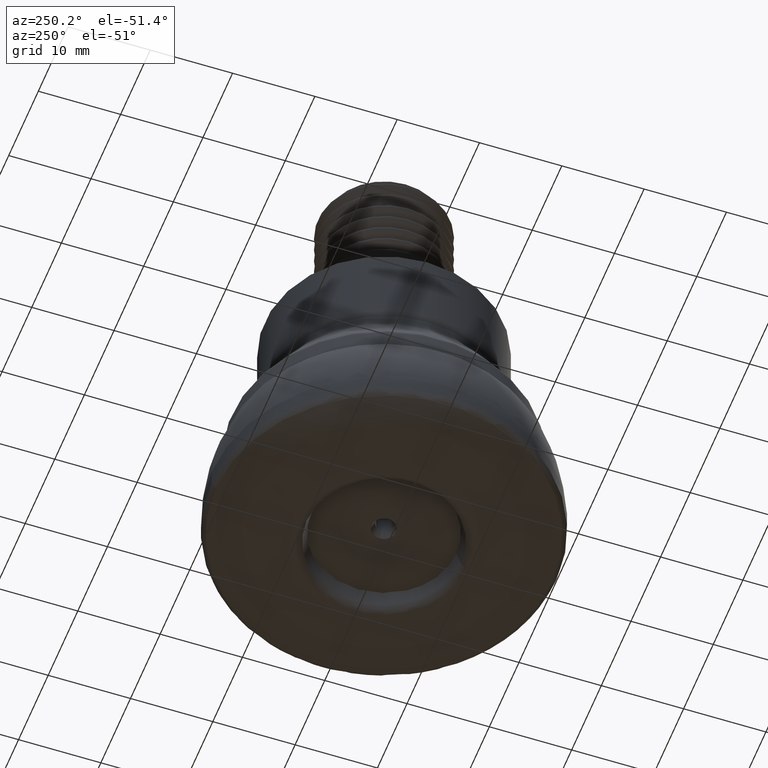
[diagram: clean part render]
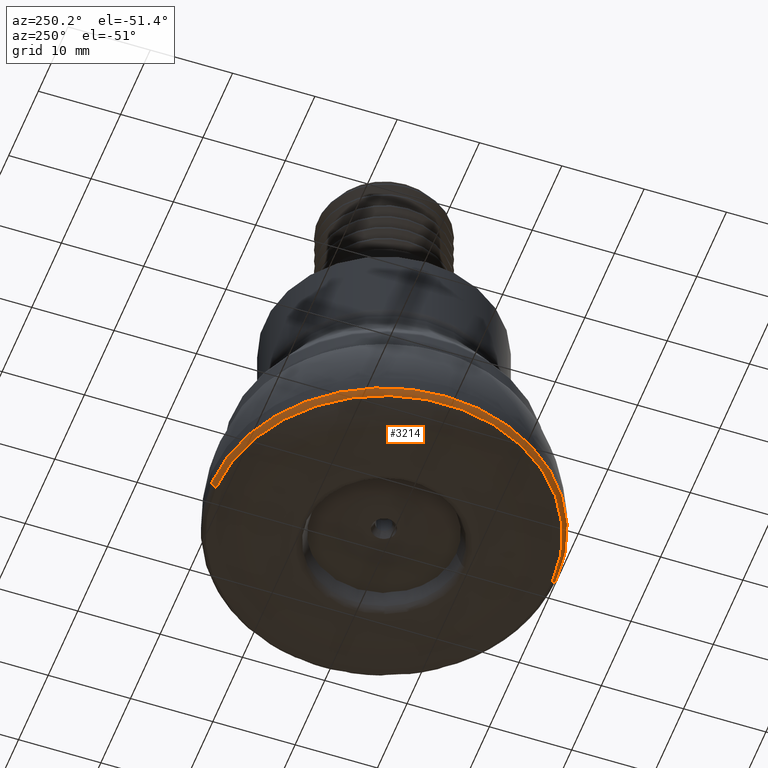
[diagram: same view with one face highlighted and labeled with its STEP entity id]
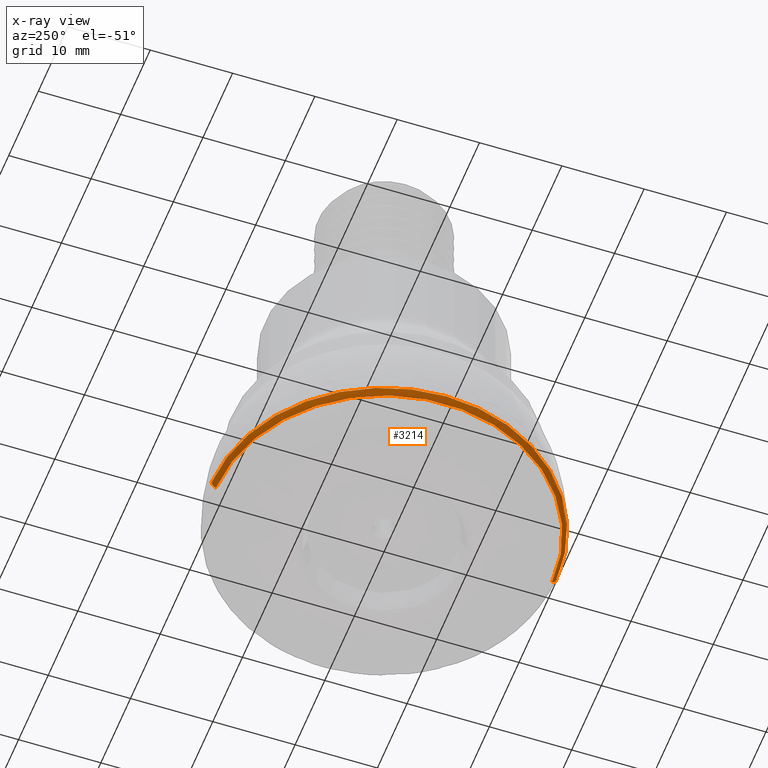
[diagram: x-ray of the same camera — body ghosted, the highlighted face saturated]
A machine part, auxiliary view. The second image highlights one B-rep face of the part: STEP entity #3214.
The next image is the same camera in x-ray: the body ghosted, the highlighted face saturated — about 0% of this face is hidden behind the body in this view.
In plain terms, the highlighted face is a freeform B-spline surface patch.
Its self-contained STEP definition (entity closure, byte-faithful):
#47 = CARTESIAN_POINT ( 'NONE',  ( 1.461077544255606300E-013, -20.92346202743445700, -2.397399454441438300 ) ) ;
#59 = EDGE_CURVE ( 'NONE', #2403, #573, #398, .T. ) ;
#74 = B_SPLINE_CURVE_WITH_KNOTS ( 'NONE', 3,
 ( #2691, #3510, #3520, #191, #180, #210, #491, #3498, #471, #2396, #2681 ),
 .UNSPECIFIED., .F., .F.,
 ( 4, 1, 1, 1, 1, 1, 1, 1, 4 ),
 ( 0.0000000000000000000, 0.1667642181257112900, 0.3334573602462579400, 0.5001451242837008400, 0.6141021189456012900, 0.7210662956580875500, 0.8210403006073694300, 0.9140207420277510800, 1.000000000000000000 ),
 .UNSPECIFIED. ) ;
#108 = CARTESIAN_POINT ( 'NONE',  ( 0.0000000000000000000, 3.197121119937112300E-016, -2.559742841672377100 ) ) ;
#180 = CARTESIAN_POINT ( 'NONE',  ( 9.226729345780421700E-015, -20.77674742175253200, -2.104751330522615800 ) ) ;
#183 = CARTESIAN_POINT ( 'NONE',  ( -9.303151783846082900E-015, 20.94883545355021300, -2.559742976856322000 ) ) ;
#191 = CARTESIAN_POINT ( 'NONE',  ( 9.185202320268800200E-015, -20.68323687344261000, -1.997532476301231000 ) ) ;
#210 = CARTESIAN_POINT ( 'NONE',  ( 9.255942468224479000E-015, -20.84252952542924900, -2.208738400985838600 ) ) ;
#355 = CARTESIAN_POINT ( 'NONE',  ( -9.203765048319548200E-015, 20.72503642100876300, -2.044700752447964600 ) ) ;
#371 = CARTESIAN_POINT ( 'NONE',  ( -9.105388207306521800E-015, 20.50351146874464400, -1.866481447531013400 ) ) ;
#398 = B_SPLINE_CURVE_WITH_KNOTS ( 'NONE', 3,
 ( #706, #3383, #371, #1256, #2109, #2336, #2935, #1830, #477, #1042, #417 ),
 .UNSPECIFIED., .F., .F.,
 ( 4, 1, 1, 1, 1, 1, 1, 1, 4 ),
 ( 0.0000000000000000000, 0.1000095332930828200, 0.1999847688098247400, 0.2999389734485371500, 0.3998863034844657400, 0.4998416446475295600, 0.6635177884483040000, 0.8302203345432609400, 1.000000000000000000 ),
 .UNSPECIFIED. ) ;
#417 = CARTESIAN_POINT ( 'NONE',  ( -1.462849361129378700E-013, 20.94883545352241300, -2.559742976835361000 ) ) ;
#432 = CARTESIAN_POINT ( 'NONE',  ( 1.457170961562015000E-013, -20.86751753977344800, -2.251992900928838200 ) ) ;
#471 = CARTESIAN_POINT ( 'NONE',  ( 9.299444854314846100E-015, -20.94048819032241600, -2.489293916008517500 ) ) ;
#477 = CARTESIAN_POINT ( 'NONE',  ( -9.291883719091150900E-015, 20.92346202743445700, -2.397399454441433000 ) ) ;
#491 = CARTESIAN_POINT ( 'NONE',  ( 9.275503622611238000E-015, -20.88657732923283600, -2.300556749069523100 ) ) ;
#573 = VERTEX_POINT ( 'NONE', #948 ) ;
#594 = CARTESIAN_POINT ( 'NONE',  ( -9.173870675691684300E-015, 20.65772027829510900, -1.977469524435981500 ) ) ;
#598 = CARTESIAN_POINT ( 'NONE',  ( -41.59519321826721200, -20.79759660913383400, -2.134366047502263900 ) ) ;
#604 = AXIS2_PLACEMENT_3D ( 'NONE', #3271, #2501, #3543 ) ;
#609 = CARTESIAN_POINT ( 'NONE',  ( -41.31544055659035300, -20.65772027829539700, -1.977469524435986600 ) ) ;
#631 = CARTESIAN_POINT ( 'NONE',  ( -41.16705453746309500, -20.58352726873177100, -1.917984832040911200 ) ) ;
#644 = CARTESIAN_POINT ( 'NONE',  ( 1.462489909947991700E-013, -20.94368790801804500, -2.504642726100624100 ) ) ;
#706 = CARTESIAN_POINT ( 'NONE',  ( -1.425760981292016800E-013, 20.41770874485653300, -1.825446698515136300 ) ) ;
#773 = CARTESIAN_POINT ( 'NONE',  ( -9.291883719091150900E-015, 20.92346202743445700, -2.397399454441433000 ) ) ;
#833 = CARTESIAN_POINT ( 'NONE',  ( 1.427790116332775500E-013, -20.44676711355213800, -1.838095402404623000 ) ) ;
#853 = CIRCLE ( 'NONE', #3423, 20.94883545436901400 ) ;
#893 = CARTESIAN_POINT ( 'NONE',  ( -41.45007284201781100, 20.72503642100874500, -2.044700752447964600 ) ) ;
#905 = CARTESIAN_POINT ( 'NONE',  ( -41.89767090710071100, 20.94883545355019500, -2.559742976856321600 ) ) ;
#942 = CARTESIAN_POINT ( 'NONE',  ( 1.437340026926894800E-013, -20.58352726873148300, -1.917984832040911000 ) ) ;
#948 = CARTESIAN_POINT ( 'NONE',  ( -1.462849361129378700E-013, 20.94883545352241300, -2.559742976835361000 ) ) ;
#961 = CARTESIAN_POINT ( 'NONE',  ( -41.89767090710055400, -20.94883545355050500, -2.559742976856326900 ) ) ;
#1042 = CARTESIAN_POINT ( 'NONE',  ( -9.300865814418039900E-015, 20.94368790801804500, -2.504642726100618800 ) ) ;
#1090 = CARTESIAN_POINT ( 'NONE',  ( -41.00702293748957300, 20.50351146874462700, -1.866481447531013400 ) ) ;
#1161 = CARTESIAN_POINT ( 'NONE',  ( 1.425760981292016300E-013, -20.41770874485652600, -1.825446698515143600 ) ) ;
#1165 = CARTESIAN_POINT ( 'NONE',  ( -41.73503507954718100, 20.86751753977342400, -2.251992900928832900 ) ) ;
#1175 = CARTESIAN_POINT ( 'NONE',  ( -1.425760981292016800E-013, 20.41770874485653300, -1.825446698515136300 ) ) ;
#1201 = EDGE_CURVE ( 'NONE', #2499, #1424, #74, .T. ) ;
#1256 = CARTESIAN_POINT ( 'NONE',  ( -9.140922360698175600E-015, 20.58352726873148300, -1.917984832040905900 ) ) ;
#1279 = CARTESIAN_POINT ( 'NONE',  ( -41.73503507954701800, -20.86751753977374000, -2.251992900928837700 ) ) ;
#1287 = ORIENTED_EDGE ( 'NONE', *, *, #59, .T. ) ;
#1424 = VERTEX_POINT ( 'NONE', #3134 ) ;
#1534 = CARTESIAN_POINT ( 'NONE',  ( -41.00702293748941700, -20.50351146874492900, -1.866481447531018700 ) ) ;
#1545 = CARTESIAN_POINT ( 'NONE',  ( 1.431752553477561900E-013, -20.50351146874464400, -1.866481447531018700 ) ) ;
#1683 = CARTESIAN_POINT ( 'NONE',  ( -9.140922360698175600E-015, 20.58352726873148300, -1.917984832040905900 ) ) ;
#1830 = CARTESIAN_POINT ( 'NONE',  ( -9.267039375770313300E-015, 20.86751753977344800, -2.251992900928832900 ) ) ;
#1842 = ORIENTED_EDGE ( 'NONE', *, *, #2281, .F. ) ;
#1896 = FACE_OUTER_BOUND ( 'NONE', #2282, .T. ) ;
#1922 = CARTESIAN_POINT ( 'NONE',  ( -41.88737581603622600, -20.94368790801834000, -2.504642726100624100 ) ) ;
#1970 = CARTESIAN_POINT ( 'NONE',  ( -9.267039375770313300E-015, 20.86751753977344800, -2.251992900928832900 ) ) ;
#2007 = CARTESIAN_POINT ( 'NONE',  ( -9.235988244930434200E-015, 20.79759660913353900, -2.134366047502259000 ) ) ;
#2012 = CARTESIAN_POINT ( 'NONE',  ( -41.88737581603637500, 20.94368790801802800, -2.504642726100619200 ) ) ;
#2054 = CARTESIAN_POINT ( 'NONE',  ( 1.442520897094175000E-013, -20.65772027829510900, -1.977469524435986800 ) ) ;
#2092 = CARTESIAN_POINT ( 'NONE',  ( 1.425760981292016300E-013, -20.41770874485652600, -1.825446698515143600 ) ) ;
#2109 = CARTESIAN_POINT ( 'NONE',  ( -9.173870675691684300E-015, 20.65772027829510900, -1.977469524435981500 ) ) ;
#2141 = CARTESIAN_POINT ( 'NONE',  ( -40.89353422710455300, 20.44676711355212000, -1.838095402404617700 ) ) ;
#2150 = CARTESIAN_POINT ( 'NONE',  ( 1.452288409071539500E-013, -20.79759660913353900, -2.134366047502264300 ) ) ;
#2200 = CARTESIAN_POINT ( 'NONE',  ( -41.31544055659050200, 20.65772027829509500, -1.977469524435981700 ) ) ;
#2263 = CARTESIAN_POINT ( 'NONE',  ( -9.080188651445616000E-015, 20.44676711355213800, -1.838095402404617700 ) ) ;
#2281 = EDGE_CURVE ( 'NONE', #1424, #573, #853, .T. ) ;
#2282 = EDGE_LOOP ( 'NONE', ( #1842, #2980, #3036, #1287 ) ) ;
#2290 = CARTESIAN_POINT ( 'NONE',  ( -41.16705453746325100, 20.58352726873146200, -1.917984832040905900 ) ) ;
#2336 = CARTESIAN_POINT ( 'NONE',  ( -9.203765048319548200E-015, 20.72503642100876300, -2.044700752447964600 ) ) ;
#2396 = CARTESIAN_POINT ( 'NONE',  ( 9.302223994256523800E-015, -20.94674625712529100, -2.537379843558738900 ) ) ;
#2403 = VERTEX_POINT ( 'NONE', #1175 ) ;
#2420 = DIRECTION ( 'NONE',  ( -0.0000000000000000000, 1.249000902703301100E-016, -1.000000000000000000 ) ) ;
#2427 = CARTESIAN_POINT ( 'NONE',  ( -9.105388207306521800E-015, 20.50351146874464400, -1.866481447531013400 ) ) ;
#2499 = VERTEX_POINT ( 'NONE', #2092 ) ;
#2501 = DIRECTION ( 'NONE',  ( -0.0000000000000000000, 1.249000902703301100E-016, -1.000000000000000000 ) ) ;
#2516 =( BOUNDED_SURFACE ( )  B_SPLINE_SURFACE ( 3, 3, ( 
 ( #2727, #961, #905, #183 ),
 ( #644, #1922, #2012, #3422 ),
 ( #47, #2949, #3473, #773 ),
 ( #432, #1279, #1165, #1970 ),
 ( #2150, #598, #2543, #2007 ),
 ( #3008, #2994, #893, #355 ),
 ( #2054, #609, #2200, #594 ),
 ( #942, #631, #2290, #1683 ),
 ( #1545, #1534, #1090, #2427 ),
 ( #833, #2975, #2141, #2263 ),
 ( #1161, #2922, #2826, #2690 ) ),
 .UNSPECIFIED., .F., .F., .F. ) 
 B_SPLINE_SURFACE_WITH_KNOTS ( ( 4, 1, 1, 1, 1, 1, 1, 1, 4 ),
 ( 4, 4 ),
 ( 1.375676283544464700E-007, 0.1697796654567390600, 0.3364822115516960000, 0.5001583553524704400, 0.6001136965155342600, 0.7000610265514628500, 0.8000152311901752600, 0.8999904667069171800, 1.000000000000000000 ),
 ( 0.0000000000000000000, 1.000000000000000000 ),
 .UNSPECIFIED. ) 
 GEOMETRIC_REPRESENTATION_ITEM ( )  RATIONAL_B_SPLINE_SURFACE ( (
 ( 1.000000000000000000, 0.3333333333333311500, 0.3333333333333311500, 1.000000000000000000),
 ( 1.000000000000000000, 0.3333333333333311500, 0.3333333333333311500, 1.000000000000000000),
 ( 1.000000000000000000, 0.3333333333333311500, 0.3333333333333311500, 1.000000000000000000),
 ( 1.000000000000000000, 0.3333333333333311500, 0.3333333333333311500, 1.000000000000000000),
 ( 1.000000000000000000, 0.3333333333333311500, 0.3333333333333311500, 1.000000000000000000),
 ( 1.000000000000000000, 0.3333333333333311500, 0.3333333333333311500, 1.000000000000000000),
 ( 1.000000000000000000, 0.3333333333333311500, 0.3333333333333311500, 1.000000000000000000),
 ( 1.000000000000000000, 0.3333333333333311500, 0.3333333333333311500, 1.000000000000000000),
 ( 1.000000000000000000, 0.3333333333333311500, 0.3333333333333311500, 1.000000000000000000),
 ( 1.000000000000000000, 0.3333333333333311500, 0.3333333333333311500, 1.000000000000000000),
 ( 1.000000000000000000, 0.3333333333333311500, 0.3333333333333311500, 1.000000000000000000) ) ) 
 REPRESENTATION_ITEM ( '' )  SURFACE ( )  );
#2543 = CARTESIAN_POINT ( 'NONE',  ( -41.59519321826736900, 20.79759660913352400, -2.134366047502258600 ) ) ;
#2681 = CARTESIAN_POINT ( 'NONE',  ( 1.462849361188496400E-013, -20.94883545436901400, -2.559742841672379800 ) ) ;
#2690 = CARTESIAN_POINT ( 'NONE',  ( -9.067284143452031000E-015, 20.41770874485652600, -1.825446698515138300 ) ) ;
#2691 = CARTESIAN_POINT ( 'NONE',  ( 1.425760981292016300E-013, -20.41770874485652600, -1.825446698515143600 ) ) ;
#2727 = CARTESIAN_POINT ( 'NONE',  ( 1.462849361131320000E-013, -20.94883545355021300, -2.559742976856326900 ) ) ;
#2826 = CARTESIAN_POINT ( 'NONE',  ( -40.83541748971333600, 20.41770874485650800, -1.825446698515138300 ) ) ;
#2892 = EDGE_CURVE ( 'NONE', #2499, #2403, #3049, .T. ) ;
#2922 = CARTESIAN_POINT ( 'NONE',  ( -40.83541748971318000, -20.41770874485681000, -1.825446698515143600 ) ) ;
#2935 = CARTESIAN_POINT ( 'NONE',  ( -9.235988244930434200E-015, 20.79759660913353900, -2.134366047502259000 ) ) ;
#2949 = CARTESIAN_POINT ( 'NONE',  ( -41.84692405486904900, -20.92346202743475200, -2.397399454441438300 ) ) ;
#2975 = CARTESIAN_POINT ( 'NONE',  ( -40.89353422710440400, -20.44676711355242200, -1.838095402404623000 ) ) ;
#2980 = ORIENTED_EDGE ( 'NONE', *, *, #1201, .F. ) ;
#2994 = CARTESIAN_POINT ( 'NONE',  ( -41.45007284201766100, -20.72503642100905500, -2.044700752447969400 ) ) ;
#3008 = CARTESIAN_POINT ( 'NONE',  ( 1.447221558215927600E-013, -20.72503642100876300, -2.044700752447969900 ) ) ;
#3036 = ORIENTED_EDGE ( 'NONE', *, *, #2892, .T. ) ;
#3049 = CIRCLE ( 'NONE', #604, 20.41770874485652600 ) ;
#3134 = CARTESIAN_POINT ( 'NONE',  ( 1.462849361188496400E-013, -20.94883545436901400, -2.559742841672379800 ) ) ;
#3168 = DIRECTION ( 'NONE',  ( 0.0000000000000000000, 1.000000000000000000, 1.242114493492061300E-016 ) ) ;
#3214 = ADVANCED_FACE ( 'NONE', ( #1896 ), #2516, .T. ) ;
#3271 = CARTESIAN_POINT ( 'NONE',  ( 0.0000000000000000000, 2.279984574282172000E-016, -1.825446698515141000 ) ) ;
#3383 = CARTESIAN_POINT ( 'NONE',  ( -9.080188651445616000E-015, 20.44676711355213800, -1.838095402404617700 ) ) ;
#3422 = CARTESIAN_POINT ( 'NONE',  ( -9.300865814418039900E-015, 20.94368790801804500, -2.504642726100618800 ) ) ;
#3423 = AXIS2_PLACEMENT_3D ( 'NONE', #108, #2420, #3168 ) ;
#3473 = CARTESIAN_POINT ( 'NONE',  ( -41.84692405486919900, 20.92346202743443900, -2.397399454441433000 ) ) ;
#3498 = CARTESIAN_POINT ( 'NONE',  ( 9.289391266976150800E-015, -20.91784952422623800, -2.390381881215570400 ) ) ;
#3510 = CARTESIAN_POINT ( 'NONE',  ( 9.088833313585955800E-015, -20.46623316214912700, -1.846568702718917000 ) ) ;
#3520 = CARTESIAN_POINT ( 'NONE',  ( 9.130235382540860900E-015, -20.55946233330794800, -1.897428276135624500 ) ) ;
#3543 = DIRECTION ( 'NONE',  ( 0.0000000000000000000, 1.000000000000000000, 1.274425669638719000E-016 ) ) ;